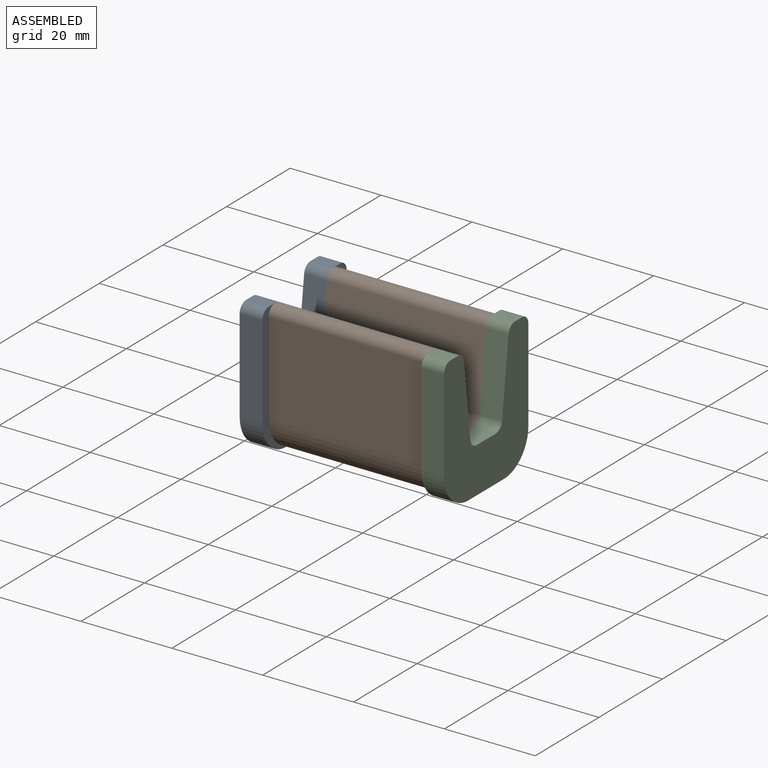
[diagram: assembled view]
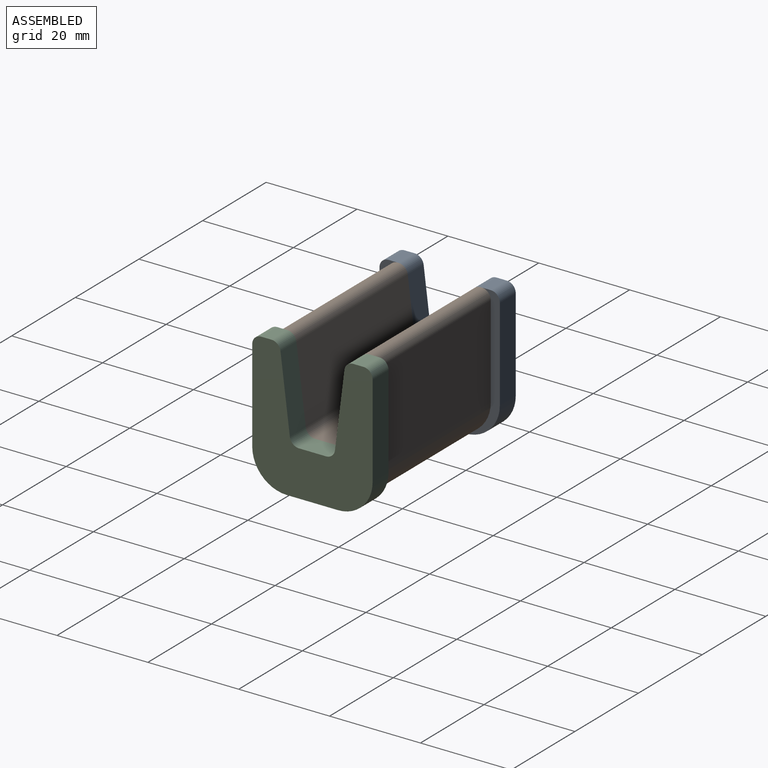
[diagram: assembled view, second angle]
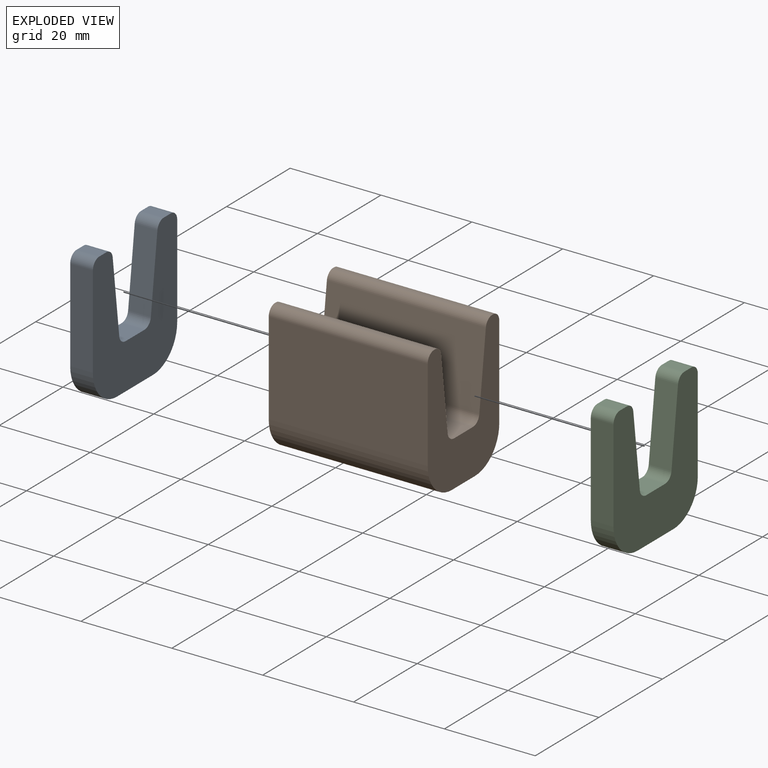
[diagram: exploded view]
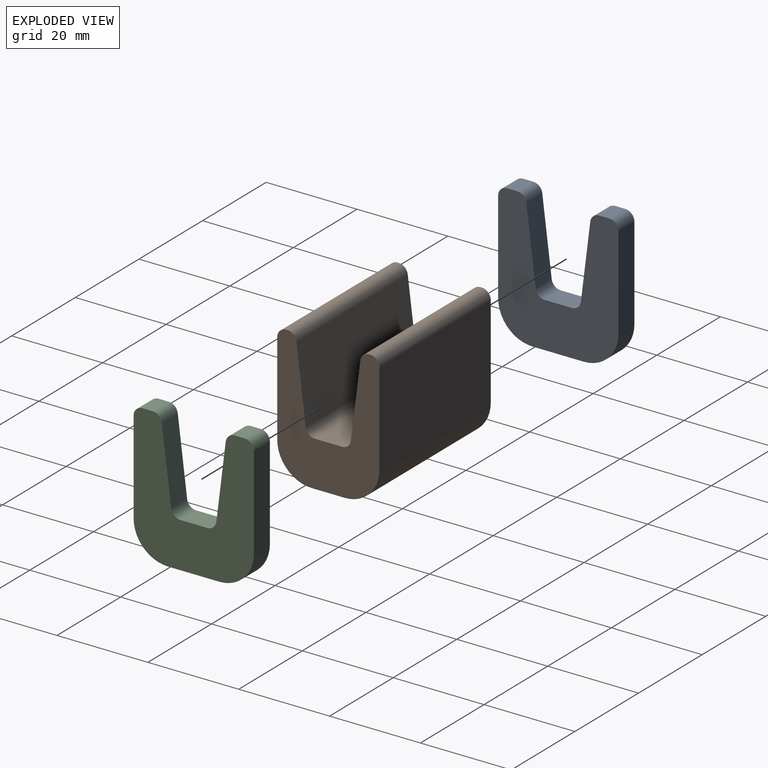
[diagram: exploded view, second angle]
ASSEMBLY  parts=3 mates=4
PART A: 18 faces, bbox 5x26.5x30 mm
  f0: plane 5.97x5mm, normal (0,0,1), area 29.8mm2, adj f8,f11,f12,f17
  f1: plane 16.5x5mm, normal (0,0.99,0.12), area 83.1mm2, adj f8,f11,f13,f17
  f2: plane 5x2.23mm, normal (0,0,1), area 11.2mm2, adj f8,f13,f14,f17
  f3: plane 20.38x5mm, normal (0,-1,0), area 101.9mm2, adj f8,f9,f14,f17
  f4: plane 11.26x5mm, normal (0,0,-1), area 56.3mm2, adj f8,f9,f10,f17
  f5: plane 20.38x5mm, normal (0,1,0), area 101.9mm2, adj f8,f10,f15,f17
  f6: plane 5x2.23mm, normal (0,0,1), area 11.2mm2, adj f8,f15,f16,f17
  f7: plane 16.5x5mm, normal (0,-0.99,0.12), area 83.1mm2, adj f8,f12,f16,f17
  f8: plane 30x26.5mm, normal (1,0,0), area 528.4mm2, adj f0,f1,f2,f3,f4,f5,f6,f7
  f9: cylinder r=7.62mm len=7.62mm, axis (-1,0,0), area 59.8mm2, adj f3,f4,f8,f17
  f10: cylinder r=7.62mm len=7.62mm, axis (-1,0,0), area 59.8mm2, adj f4,f5,f8,f17
  f11: cylinder r=2mm len=5mm, axis (1,0,0), area 14.5mm2, adj f0,f1,f8,f17
  f12: cylinder r=2mm len=5mm, axis (1,0,0), area 14.5mm2, adj f0,f7,f8,f17
  f13: cylinder r=2mm len=5mm, axis (-1,0,0), area 14.5mm2, adj f1,f2,f8,f17
  f14: cylinder r=2mm len=5mm, axis (-1,0,0), area 15.7mm2, adj f2,f3,f8,f17
  f15: cylinder r=2mm len=5mm, axis (-1,0,0), area 15.7mm2, adj f5,f6,f8,f17
  f16: cylinder r=2mm len=5mm, axis (-1,0,0), area 14.5mm2, adj f6,f7,f8,f17
  f17: plane 30x26.5mm, normal (-1,0,0), area 528.4mm2, adj f0,f1,f2,f3,f4,f5,f6,f7
PART B: 18 faces, bbox 35x22.5x30 mm
  f0: plane 30x22.5mm, normal (1,0,0), area 408.4mm2, adj f2,f3,f4,f5,f6,f7,f8,f9
  f1: plane 30x22.5mm, normal (-1,0,0), area 408.4mm2, adj f2,f3,f4,f5,f6,f7,f8,f9
  f2: cylinder r=2mm len=35mm, axis (1,0,0), area 101.3mm2, adj f0,f1,f16,f17
  f3: cylinder r=2mm len=35mm, axis (-1,0,0), area 101.3mm2, adj f0,f1,f15,f16
  f4: cylinder r=2mm len=35mm, axis (-1,0,0), area 110mm2, adj f0,f1,f14,f15
  f5: cylinder r=7.62mm len=35mm, axis (-1,0,0), area 418.9mm2, adj f0,f1,f13,f14
  f6: cylinder r=7.62mm len=35mm, axis (-1,0,0), area 418.9mm2, adj f0,f1,f12,f13
  f7: cylinder r=2mm len=35mm, axis (-1,0,0), area 110mm2, adj f0,f1,f11,f12
  f8: cylinder r=2mm len=35mm, axis (-1,0,0), area 101.3mm2, adj f0,f1,f10,f11
  f9: cylinder r=2mm len=35mm, axis (1,0,0), area 101.3mm2, adj f0,f1,f10,f17
  f10: plane 35x16.5mm, normal (0,-0.99,0.12), area 581.9mm2, adj f0,f1,f8,f9
  f11: plane 35x0.23mm, normal (0,0,1), area 8.2mm2, adj f0,f1,f7,f8
  f12: plane 35x20.38mm, normal (0,1,0), area 713.3mm2, adj f0,f1,f6,f7
  f13: plane 35x7.26mm, normal (0,0,-1), area 254.1mm2, adj f0,f1,f5,f6
  f14: plane 35x20.38mm, normal (0,-1,0), area 713.3mm2, adj f0,f1,f4,f5
  f15: plane 35x0.23mm, normal (0,0,1), area 8.2mm2, adj f0,f1,f3,f4
  f16: plane 35x16.5mm, normal (0,0.99,0.12), area 581.9mm2, adj f0,f1,f2,f3
  f17: plane 35x5.97mm, normal (0,0,1), area 208.9mm2, adj f0,f1,f2,f9
PART C: same geometry as A
PLACE A t=(-31.25,21.59,-6.18)mm
PLACE B t=(8.75,21.59,-6.18)mm
PLACE C t=(8.75,21.59,-6.18)mm
MATE planar B.f0 <-> C.f17  axis (1,0,0) through (43.75,21.37,-4.43)mm
MATE planar A.f9 <-> B.f5  axis (1,0,0) through (8.75,20.71,-8.56)mm
MATE cylindrical A.f12 <-> B.f9  axis (1,0,0) through (8.75,29.33,-4.18)mm
MATE cylindrical B.f9 <-> C.f12  axis (1,0,0) through (43.75,29.33,-4.18)mm
